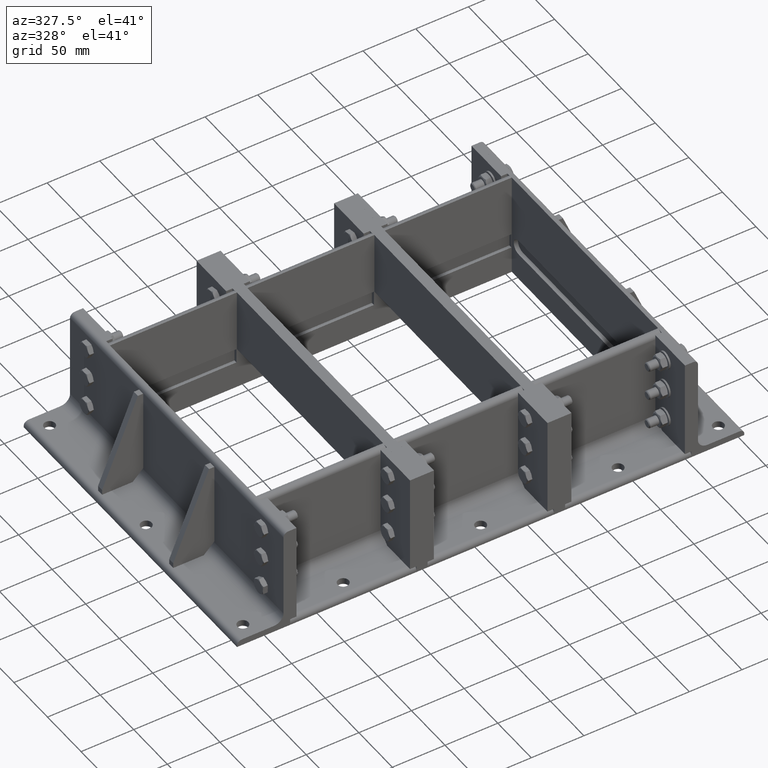
[diagram: clean part render]
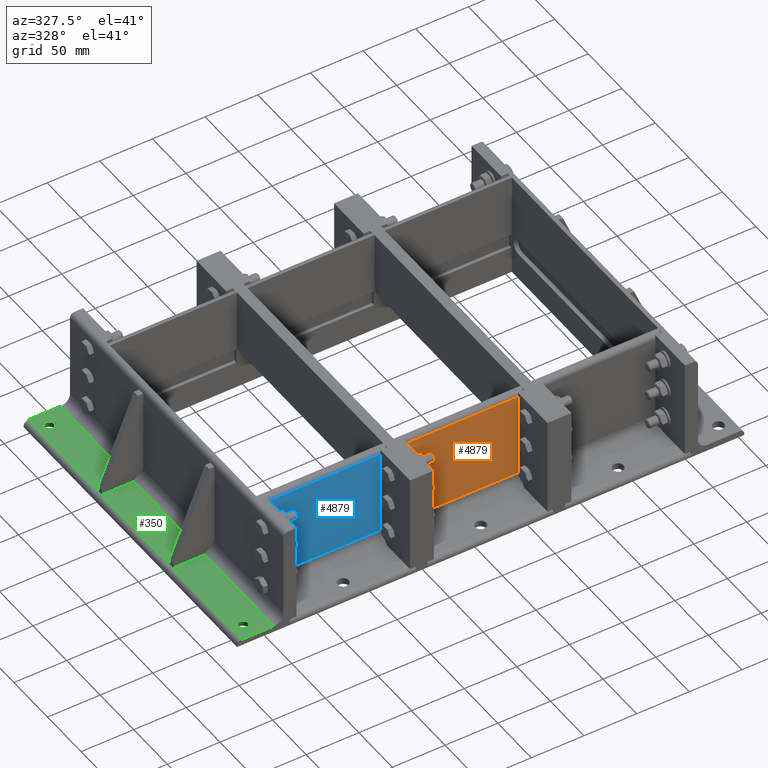
[diagram: same view with three faces highlighted in distinct colors, each labeled with its STEP entity id]
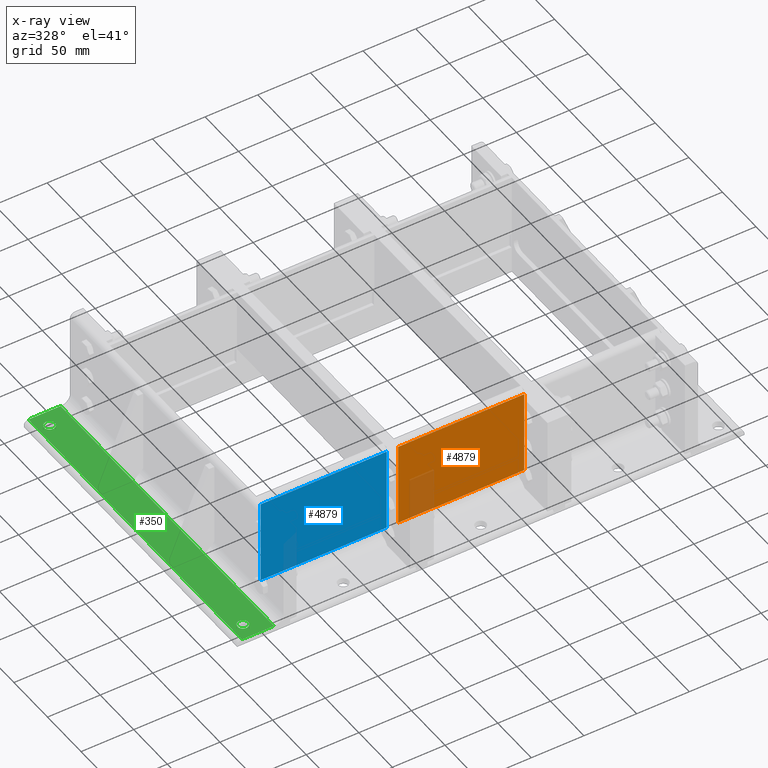
[diagram: x-ray of the same camera — body ghosted, the three highlighted faces saturated]
A machine part, auxiliary view with three faces highlighted in distinct colors.
The next image is the same camera in x-ray (body ghosted, the three faces saturated) — at least one of them is partly hidden behind the body in this view.
Their STEP definitions:

[orange] entity #4879 — the highlighted planar face has unit normal (0, -1, -0).
#4561=CARTESIAN_POINT('',(2.219856E-014,119.80000000000001,89.5));
#4562=VERTEX_POINT('',#4561);
#4570=CARTESIAN_POINT('',(2.232257E-015,119.80000000000001,9.000000000000005));
#4571=VERTEX_POINT('',#4570);
#4572=CARTESIAN_POINT('',(2.219856E-014,119.80000000000001,89.5));
#4573=DIRECTION('',(0.0,0.0,-1.0));
#4574=VECTOR('',#4573,80.5);
#4575=LINE('',#4572,#4574);
#4576=EDGE_CURVE('',#4562,#4571,#4575,.T.);
#4658=CARTESIAN_POINT('',(2.232257E-015,0.0,9.000000000000005));
#4659=VERTEX_POINT('',#4658);
#4676=CARTESIAN_POINT('',(2.220446E-015,119.80000000000001,9.000000000000005));
#4677=DIRECTION('',(0.0,-1.0,0.0));
#4678=VECTOR('',#4677,119.80000000000001);
#4679=LINE('',#4676,#4678);
#4680=EDGE_CURVE('',#4571,#4659,#4679,.T.);
#4785=CARTESIAN_POINT('',(2.219856E-014,0.0,89.5));
#4786=VERTEX_POINT('',#4785);
#4787=CARTESIAN_POINT('',(2.232257E-015,0.0,9.000000000000005));
#4788=DIRECTION('',(0.0,0.0,1.0));
#4789=VECTOR('',#4788,80.5);
#4790=LINE('',#4787,#4789);
#4791=EDGE_CURVE('',#4659,#4786,#4790,.T.);
#4827=CARTESIAN_POINT('',(2.220446E-014,0.0,89.5));
#4828=DIRECTION('',(0.0,1.0,0.0));
#4829=VECTOR('',#4828,119.80000000000001);
#4830=LINE('',#4827,#4829);
#4831=EDGE_CURVE('',#4786,#4562,#4830,.T.);
#4868=CARTESIAN_POINT('',(2.331468E-014,0.0,93.999999999999986));
#4869=DIRECTION('',(1.0,0.0,0.0));
#4870=DIRECTION('',(0.0,0.0,-1.0));
#4871=AXIS2_PLACEMENT_3D('',#4868,#4869,#4870);
#4872=PLANE('',#4871);
#4873=ORIENTED_EDGE('',*,*,#4680,.F.);
#4874=ORIENTED_EDGE('',*,*,#4576,.F.);
#4875=ORIENTED_EDGE('',*,*,#4831,.F.);
#4876=ORIENTED_EDGE('',*,*,#4791,.F.);
#4877=EDGE_LOOP('',(#4873,#4874,#4875,#4876));
#4878=FACE_OUTER_BOUND('',#4877,.T.);
#4879=ADVANCED_FACE('',(#4878),#4872,.T.);

[blue] entity #4879 — the highlighted planar face has unit normal (0, -1, -0).
#4561=CARTESIAN_POINT('',(2.219856E-014,119.80000000000001,89.5));
#4562=VERTEX_POINT('',#4561);
#4570=CARTESIAN_POINT('',(2.232257E-015,119.80000000000001,9.000000000000005));
#4571=VERTEX_POINT('',#4570);
#4572=CARTESIAN_POINT('',(2.219856E-014,119.80000000000001,89.5));
#4573=DIRECTION('',(0.0,0.0,-1.0));
#4574=VECTOR('',#4573,80.5);
#4575=LINE('',#4572,#4574);
#4576=EDGE_CURVE('',#4562,#4571,#4575,.T.);
#4658=CARTESIAN_POINT('',(2.232257E-015,0.0,9.000000000000005));
#4659=VERTEX_POINT('',#4658);
#4676=CARTESIAN_POINT('',(2.220446E-015,119.80000000000001,9.000000000000005));
#4677=DIRECTION('',(0.0,-1.0,0.0));
#4678=VECTOR('',#4677,119.80000000000001);
#4679=LINE('',#4676,#4678);
#4680=EDGE_CURVE('',#4571,#4659,#4679,.T.);
#4785=CARTESIAN_POINT('',(2.219856E-014,0.0,89.5));
#4786=VERTEX_POINT('',#4785);
#4787=CARTESIAN_POINT('',(2.232257E-015,0.0,9.000000000000005));
#4788=DIRECTION('',(0.0,0.0,1.0));
#4789=VECTOR('',#4788,80.5);
#4790=LINE('',#4787,#4789);
#4791=EDGE_CURVE('',#4659,#4786,#4790,.T.);
#4827=CARTESIAN_POINT('',(2.220446E-014,0.0,89.5));
#4828=DIRECTION('',(0.0,1.0,0.0));
#4829=VECTOR('',#4828,119.80000000000001);
#4830=LINE('',#4827,#4829);
#4831=EDGE_CURVE('',#4786,#4562,#4830,.T.);
#4868=CARTESIAN_POINT('',(2.331468E-014,0.0,93.999999999999986));
#4869=DIRECTION('',(1.0,0.0,0.0));
#4870=DIRECTION('',(0.0,0.0,-1.0));
#4871=AXIS2_PLACEMENT_3D('',#4868,#4869,#4870);
#4872=PLANE('',#4871);
#4873=ORIENTED_EDGE('',*,*,#4680,.F.);
#4874=ORIENTED_EDGE('',*,*,#4576,.F.);
#4875=ORIENTED_EDGE('',*,*,#4831,.F.);
#4876=ORIENTED_EDGE('',*,*,#4791,.F.);
#4877=EDGE_LOOP('',(#4873,#4874,#4875,#4876));
#4878=FACE_OUTER_BOUND('',#4877,.T.);
#4879=ADVANCED_FACE('',(#4878),#4872,.T.);

[green] entity #350 — the highlighted planar face has unit normal (-0, -0, 1).
#190=CARTESIAN_POINT('',(29.749999999999993,303.0,6.000000000000004));
#191=VERTEX_POINT('',#190);
#192=CARTESIAN_POINT('',(34.999999999999993,303.0,6.000000000000004));
#193=DIRECTION('',(0.0,0.0,-1.0));
#194=DIRECTION('',(1.0,0.0,0.0));
#195=AXIS2_PLACEMENT_3D('',#192,#193,#194);
#196=CIRCLE('',#195,5.25);
#197=EDGE_CURVE('',#191,#191,#196,.T.);
#218=CARTESIAN_POINT('',(29.749999999999993,15.0,6.000000000000004));
#219=VERTEX_POINT('',#218);
#220=CARTESIAN_POINT('',(34.999999999999993,15.0,6.000000000000004));
#221=DIRECTION('',(0.0,0.0,-1.0));
#222=DIRECTION('',(1.0,0.0,0.0));
#223=AXIS2_PLACEMENT_3D('',#220,#221,#222);
#224=CIRCLE('',#223,5.25);
#225=EDGE_CURVE('',#219,#219,#224,.T.);
#246=CARTESIAN_POINT('',(29.749999999999993,159.0,6.000000000000004));
#247=VERTEX_POINT('',#246);
#248=CARTESIAN_POINT('',(34.999999999999993,159.0,6.000000000000004));
#249=DIRECTION('',(0.0,0.0,-1.0));
#250=DIRECTION('',(1.0,0.0,0.0));
#251=AXIS2_PLACEMENT_3D('',#248,#249,#250);
#252=CIRCLE('',#251,5.25);
#253=EDGE_CURVE('',#247,#247,#252,.T.);
#276=CARTESIAN_POINT('',(15.0,0.0,6.000000000000001));
#277=VERTEX_POINT('',#276);
#285=CARTESIAN_POINT('',(15.0,318.0,6.000000000000001));
#286=VERTEX_POINT('',#285);
#287=CARTESIAN_POINT('',(14.999999999999998,0.0,6.000000000000001));
#288=DIRECTION('',(0.0,1.0,0.0));
#289=VECTOR('',#288,318.0);
#290=LINE('',#287,#289);
#291=EDGE_CURVE('',#277,#286,#290,.T.);
#311=CARTESIAN_POINT('',(5.999999999999996,0.0,6.000000000000004));
#312=DIRECTION('',(0.0,0.0,1.0));
#313=DIRECTION('',(1.0,0.0,0.0));
#314=AXIS2_PLACEMENT_3D('',#311,#312,#313);
#315=PLANE('',#314);
#316=ORIENTED_EDGE('',*,*,#291,.F.);
#317=CARTESIAN_POINT('',(45.499999999999986,0.0,5.999999999999991));
#318=VERTEX_POINT('',#317);
#319=CARTESIAN_POINT('',(45.499999999999993,0.0,5.999999999999991));
#320=DIRECTION('',(-1.0,0.0,0.0));
#321=VECTOR('',#320,30.499999999999993);
#322=LINE('',#319,#321);
#323=EDGE_CURVE('',#318,#277,#322,.T.);
#324=ORIENTED_EDGE('',*,*,#323,.F.);
#325=CARTESIAN_POINT('',(45.499999999999986,318.0,5.999999999999991));
#326=VERTEX_POINT('',#325);
#327=CARTESIAN_POINT('',(45.499999999999986,318.0,5.999999999999991));
#328=DIRECTION('',(0.0,-1.0,0.0));
#329=VECTOR('',#328,318.0);
#330=LINE('',#327,#329);
#331=EDGE_CURVE('',#326,#318,#330,.T.);
#332=ORIENTED_EDGE('',*,*,#331,.F.);
#333=CARTESIAN_POINT('',(15.0,318.0,6.0));
#334=DIRECTION('',(1.0,0.0,0.0));
#335=VECTOR('',#334,30.499999999999993);
#336=LINE('',#333,#335);
#337=EDGE_CURVE('',#286,#326,#336,.T.);
#338=ORIENTED_EDGE('',*,*,#337,.F.);
#339=EDGE_LOOP('',(#316,#324,#332,#338));
#340=FACE_OUTER_BOUND('',#339,.T.);
#341=ORIENTED_EDGE('',*,*,#197,.T.);
#342=EDGE_LOOP('',(#341));
#343=FACE_BOUND('',#342,.T.);
#344=ORIENTED_EDGE('',*,*,#225,.T.);
#345=EDGE_LOOP('',(#344));
#346=FACE_BOUND('',#345,.T.);
#347=ORIENTED_EDGE('',*,*,#253,.T.);
#348=EDGE_LOOP('',(#347));
#349=FACE_BOUND('',#348,.T.);
#350=ADVANCED_FACE('',(#340,#343,#346,#349),#315,.T.);